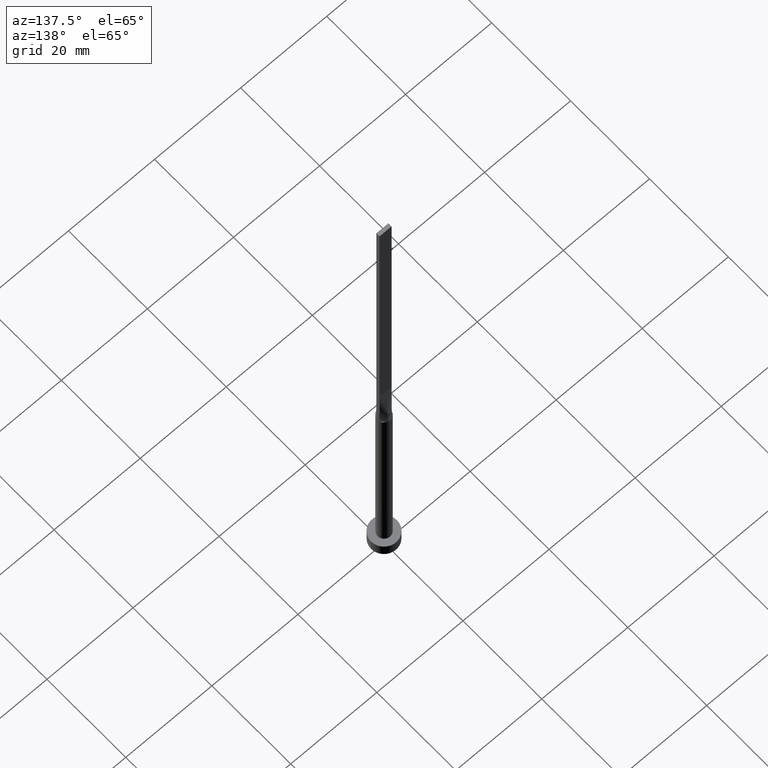
[diagram: clean part render]
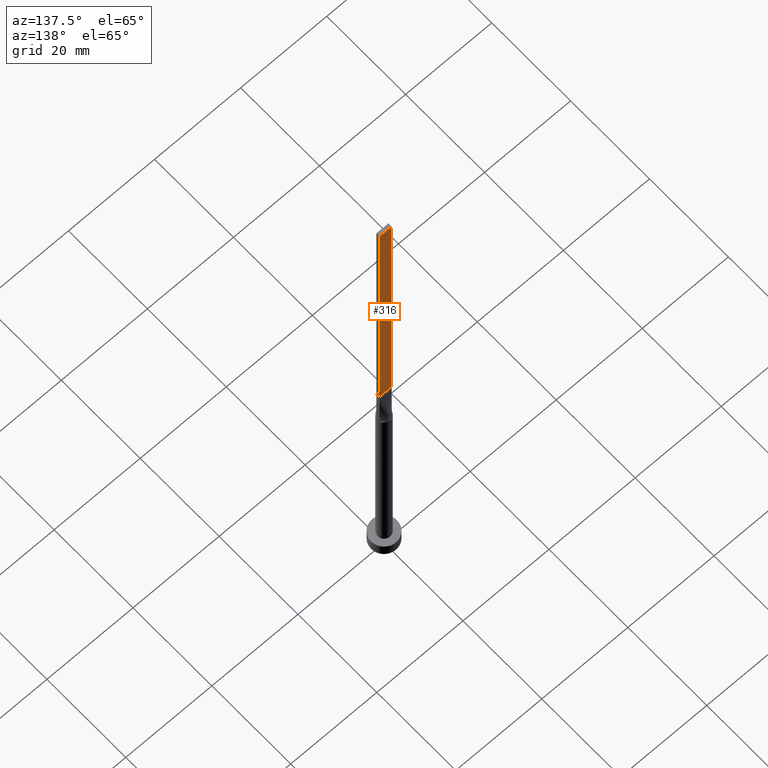
[diagram: same view with one face highlighted and labeled with its STEP entity id]
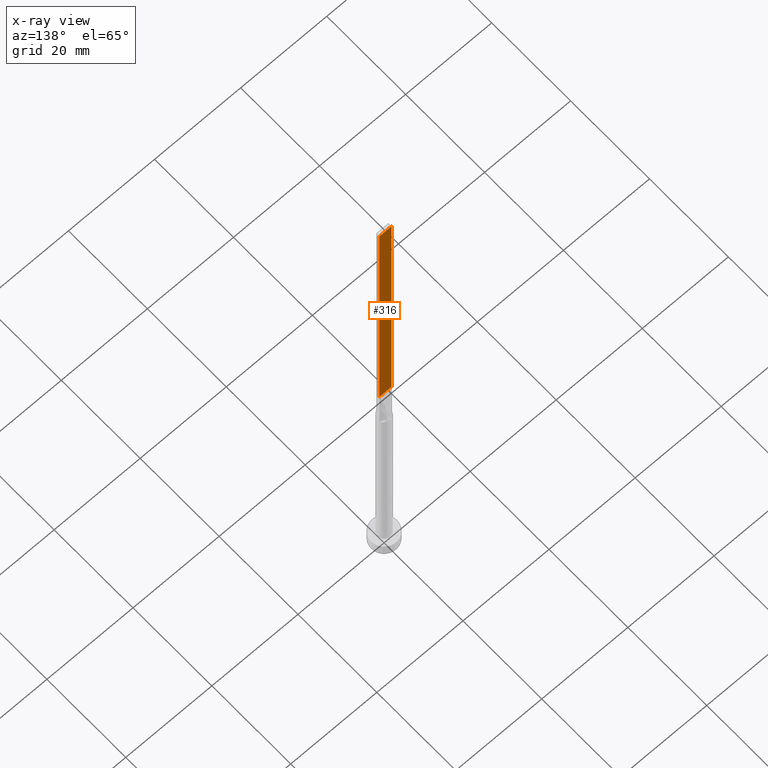
[diagram: x-ray of the same camera — body ghosted, the highlighted face saturated]
A machine part, auxiliary view. The second image highlights one B-rep face of the part: STEP entity #316.
The next image is the same camera in x-ray: the body ghosted, the highlighted face saturated — about 0% of this face is hidden behind the body in this view.
In plain terms, the highlighted planar face has unit normal (0, -1, 0).
Its self-contained STEP definition (entity closure, byte-faithful):
#6 = ORIENTED_EDGE ( 'NONE', *, *, #335, .F. ) ;
#7 = VECTOR ( 'NONE', #220, 1000.000000000000000 ) ;
#10 = VERTEX_POINT ( 'NONE', #196 ) ;
#31 = CARTESIAN_POINT ( 'NONE',  ( 1.399999999999999689, 0.4000000000000002442, 125.0000000000000000 ) ) ;
#97 = LINE ( 'NONE', #423, #544 ) ;
#104 = ORIENTED_EDGE ( 'NONE', *, *, #200, .T. ) ;
#149 = VERTEX_POINT ( 'NONE', #186 ) ;
#156 = CARTESIAN_POINT ( 'NONE',  ( 1.399999999999999689, 0.4000000000000002442, 125.0000000000000000 ) ) ;
#162 = LINE ( 'NONE', #31, #446 ) ;
#186 = CARTESIAN_POINT ( 'NONE',  ( -1.399999999999999689, 0.4000000000000002442, 60.00000000000000711 ) ) ;
#196 = CARTESIAN_POINT ( 'NONE',  ( 1.399999999999999689, 0.4000000000000002442, 60.00000000000000711 ) ) ;
#200 = EDGE_CURVE ( 'NONE', #10, #149, #97, .T. ) ;
#220 = DIRECTION ( 'NONE',  ( -0.000000000000000000, -0.000000000000000000, -1.000000000000000000 ) ) ;
#239 = VERTEX_POINT ( 'NONE', #307 ) ;
#252 = DIRECTION ( 'NONE',  ( -1.000000000000000000, 0.000000000000000000, 0.000000000000000000 ) ) ;
#261 = EDGE_CURVE ( 'NONE', #239, #10, #303, .T. ) ;
#262 = FACE_OUTER_BOUND ( 'NONE', #406, .T. ) ;
#295 = DIRECTION ( 'NONE',  ( -0.000000000000000000, -0.000000000000000000, -1.000000000000000000 ) ) ;
#302 = VERTEX_POINT ( 'NONE', #566 ) ;
#303 = LINE ( 'NONE', #431, #372 ) ;
#307 = CARTESIAN_POINT ( 'NONE',  ( 1.399999999999999689, 0.4000000000000002442, 125.0000000000000000 ) ) ;
#315 = CARTESIAN_POINT ( 'NONE',  ( -1.399999999999999689, 0.4000000000000002442, 125.0000000000000000 ) ) ;
#316 = ADVANCED_FACE ( 'NONE', ( #262 ), #474, .F. ) ;
#319 = LINE ( 'NONE', #315, #7 ) ;
#335 = EDGE_CURVE ( 'NONE', #239, #302, #162, .T. ) ;
#354 = ORIENTED_EDGE ( 'NONE', *, *, #461, .F. ) ;
#372 = VECTOR ( 'NONE', #295, 1000.000000000000000 ) ;
#399 = AXIS2_PLACEMENT_3D ( 'NONE', #156, #469, #468 ) ;
#406 = EDGE_LOOP ( 'NONE', ( #104, #354, #6, #430 ) ) ;
#423 = CARTESIAN_POINT ( 'NONE',  ( -1.399999999999999689, 0.4000000000000002442, 60.00000000000000711 ) ) ;
#430 = ORIENTED_EDGE ( 'NONE', *, *, #261, .T. ) ;
#431 = CARTESIAN_POINT ( 'NONE',  ( 1.399999999999999689, 0.4000000000000002442, 125.0000000000000000 ) ) ;
#446 = VECTOR ( 'NONE', #252, 1000.000000000000000 ) ;
#461 = EDGE_CURVE ( 'NONE', #302, #149, #319, .T. ) ;
#468 = DIRECTION ( 'NONE',  ( 0.000000000000000000, -0.000000000000000000, -1.000000000000000000 ) ) ;
#469 = DIRECTION ( 'NONE',  ( 0.000000000000000000, -1.000000000000000000, 0.000000000000000000 ) ) ;
#474 = PLANE ( 'NONE',  #399 ) ;
#500 = DIRECTION ( 'NONE',  ( -1.000000000000000000, -0.000000000000000000, -0.000000000000000000 ) ) ;
#544 = VECTOR ( 'NONE', #500, 1000.000000000000000 ) ;
#566 = CARTESIAN_POINT ( 'NONE',  ( -1.399999999999999689, 0.4000000000000002442, 125.0000000000000000 ) ) ;